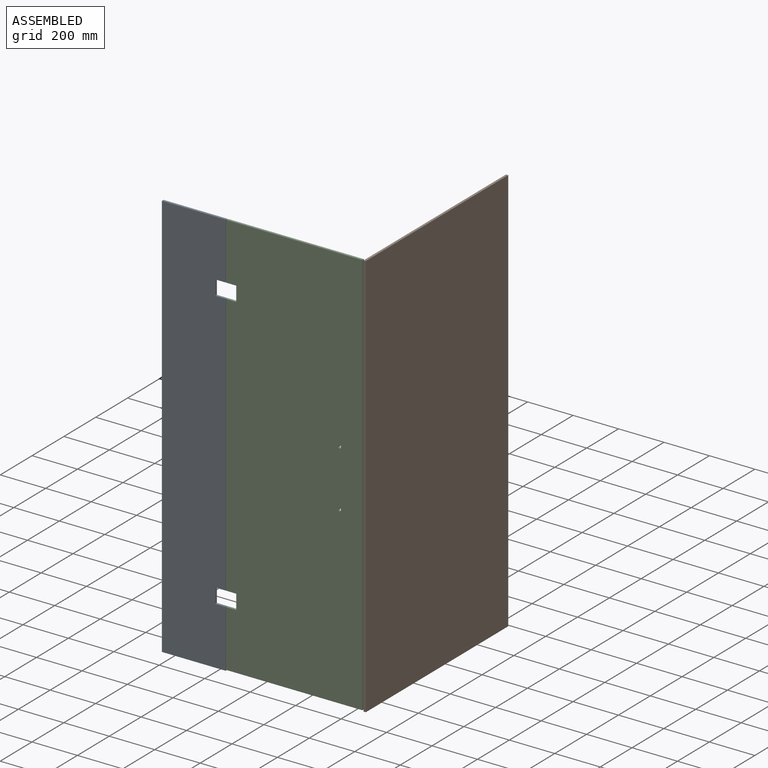
[diagram: assembled view]
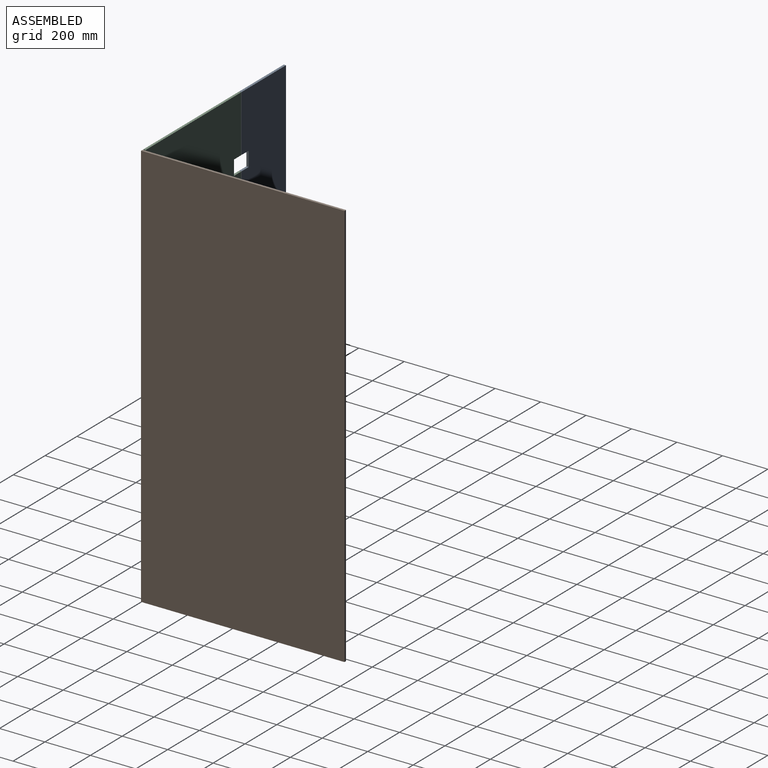
[diagram: assembled view, second angle]
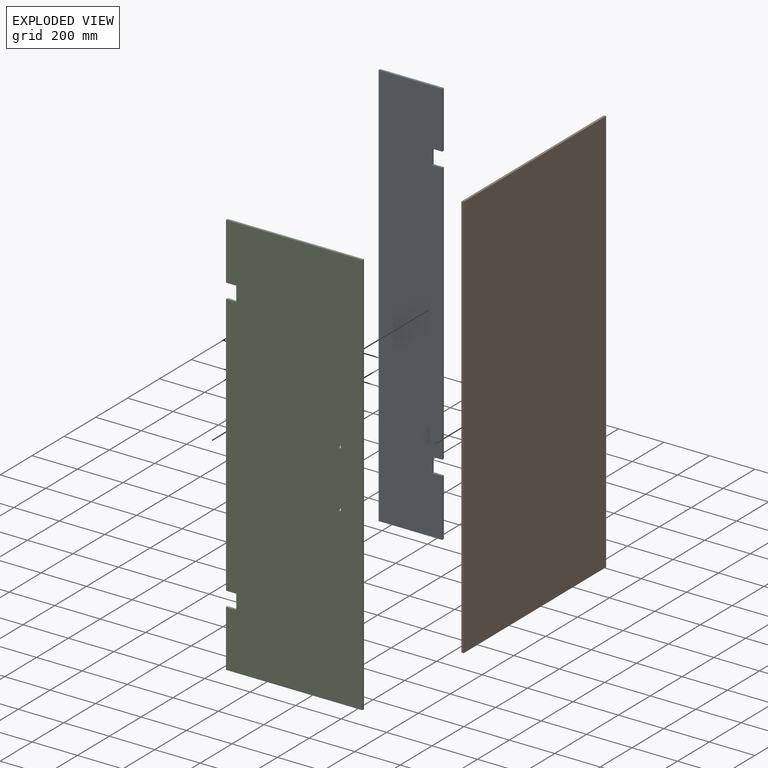
[diagram: exploded view]
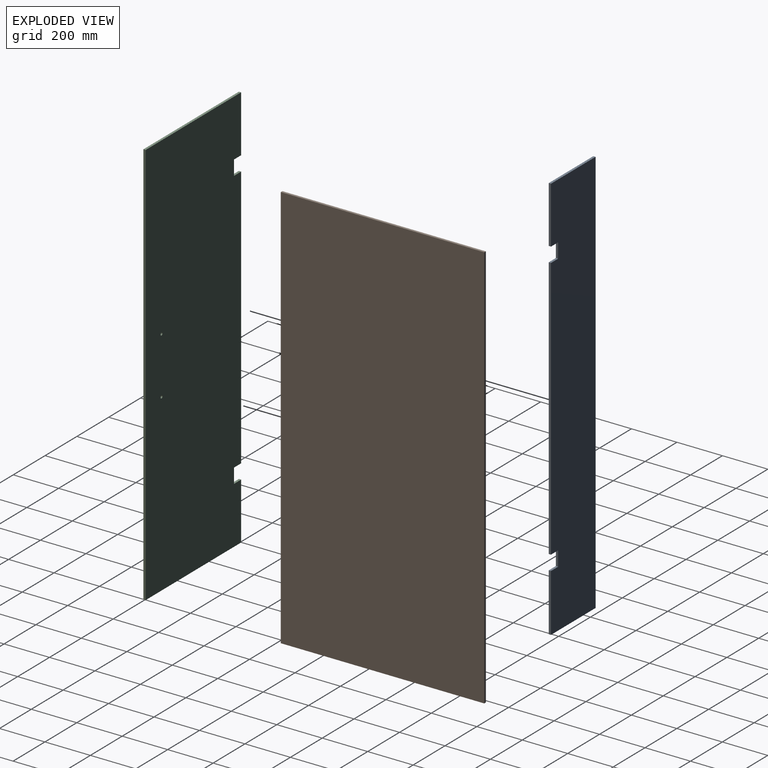
[diagram: exploded view, second angle]
ASSEMBLY  parts=3 mates=2
PART A: 14 faces, bbox 280x10x1794 mm
  f0: plane 45x10mm, normal (0,0,-1), area 450mm2, adj f1,f11,f12,f13
  f1: plane 250x10mm, normal (1,0,0), area 2500mm2, adj f0,f2,f12,f13
  f2: plane 280x10mm, normal (0,0,1), area 2800mm2, adj f1,f3,f12,f13
  f3: plane 1794x10mm, normal (-1,0,0), area 17940mm2, adj f2,f4,f12,f13
  f4: plane 280x10mm, normal (0,0,-1), area 2800mm2, adj f3,f5,f12,f13
  f5: plane 254x10mm, normal (1,0,0), area 2540mm2, adj f4,f6,f12,f13
  f6: plane 45x10mm, normal (0,0,1), area 450mm2, adj f5,f7,f12,f13
  f7: plane 65x10mm, normal (1,0,0), area 650mm2, adj f6,f8,f12,f13
  f8: plane 45x10mm, normal (0,0,-1), area 450mm2, adj f7,f9,f12,f13
  f9: plane 1160x10mm, normal (1,0,0), area 11600mm2, adj f8,f10,f12,f13
  f10: plane 45x10mm, normal (0,0,1), area 450mm2, adj f9,f11,f12,f13
  f11: plane 65x10mm, normal (1,0,0), area 650mm2, adj f0,f10,f12,f13
  f12: plane 1794x280mm, normal (0,1,0), area 496470mm2, adj f0,f1,f2,f3,f4,f5,f6,f7
  f13: plane 1794x280mm, normal (0,-1,0), area 496470mm2, adj f0,f1,f2,f3,f4,f5,f6,f7
PART B: 6 faces, bbox 895x10x1794 mm
  f0: plane 1794x10mm, normal (1,0,0), area 17940mm2, adj f1,f3,f4,f5
  f1: plane 895x10mm, normal (0,0,1), area 8950mm2, adj f0,f2,f4,f5
  f2: plane 1794x10mm, normal (-1,0,0), area 17940mm2, adj f1,f3,f4,f5
  f3: plane 895x10mm, normal (0,0,-1), area 8950mm2, adj f0,f2,f4,f5
  f4: plane 1794x895mm, normal (0,1,0), area 1605630mm2, adj f0,f1,f2,f3
  f5: plane 1794x895mm, normal (0,-1,0), area 1605630mm2, adj f0,f1,f2,f3
PART C: 16 faces, bbox 600x10x1790 mm
  f0: plane 1790x10mm, normal (1,0,0), area 17900mm2, adj f1,f12,f14,f15
  f1: plane 600x10mm, normal (0,0,1), area 6000mm2, adj f0,f2,f14,f15
  f2: plane 250x10mm, normal (-1,0,0), area 2500mm2, adj f1,f3,f14,f15
  f3: plane 45x10mm, normal (0,0,-1), area 450mm2, adj f2,f4,f14,f15
  f4: plane 65x10mm, normal (-1,0,0), area 650mm2, adj f3,f5,f14,f15
  f5: plane 45x10mm, normal (0,0,1), area 450mm2, adj f4,f6,f14,f15
  f6: plane 1160x10mm, normal (-1,0,0), area 11600mm2, adj f5,f7,f14,f15
  f7: plane 45x10mm, normal (0,0,-1), area 450mm2, adj f6,f8,f14,f15
  f8: plane 65x10mm, normal (-1,0,0), area 650mm2, adj f7,f9,f14,f15
  f9: plane 45x10mm, normal (0,0,1), area 450mm2, adj f8,f10,f14,f15
  f10: plane 250x10mm, normal (-1,0,0), area 2500mm2, adj f9,f12,f14,f15
  f11: cylinder r=6mm len=12mm, axis (0,-1,0), area 377mm2, adj f14,f15
  f12: plane 600x10mm, normal (0,0,-1), area 6000mm2, adj f0,f10,f14,f15
  f13: cylinder r=6mm len=12mm, axis (0,-1,0), area 377mm2, adj f14,f15
  f14: plane 1790x600mm, normal (0,1,0), area 1067923.8mm2, adj f0,f1,f2,f3,f4,f5,f6,f7
  f15: plane 1790x600mm, normal (0,-1,0), area 1067923.8mm2, adj f0,f1,f2,f3,f4,f5,f6,f7
PLACE A t=(20.97,39.5,135.46)mm fixed
PLACE B rot(axis=(0,0,-1),90deg) t=(71.04,-1371.47,135.46)mm
PLACE C t=(-574.52,39.5,135.46)mm
MATE fastened C.f15 <-> A.f13  axis (0,-1,0) through (-533.96,39.5,1666.73)mm
MATE fastened B.f0 <-> C.f15  axis (0,-1,0) through (71.04,39.5,1666.73)mm
